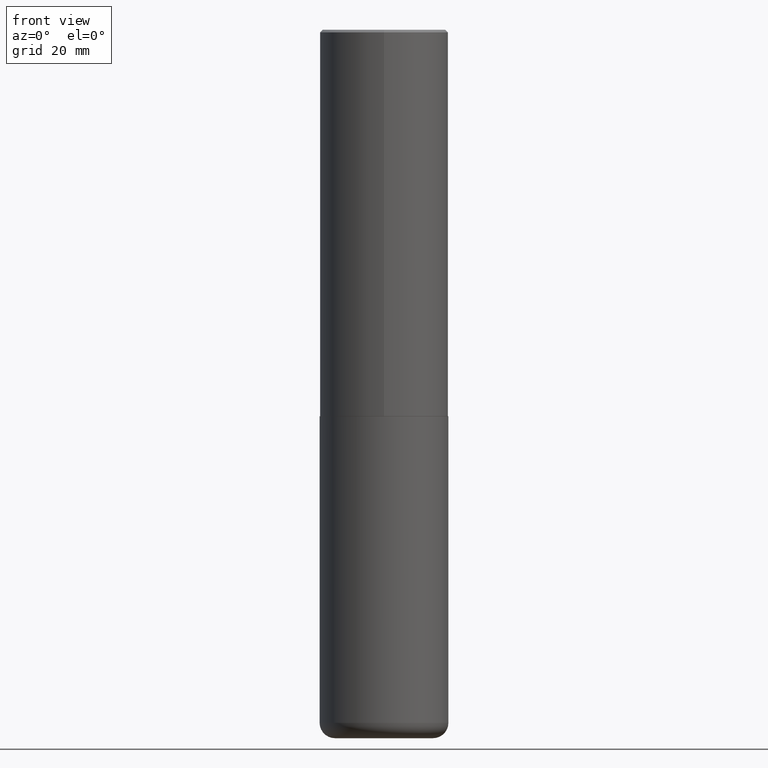
[diagram: clean part render]
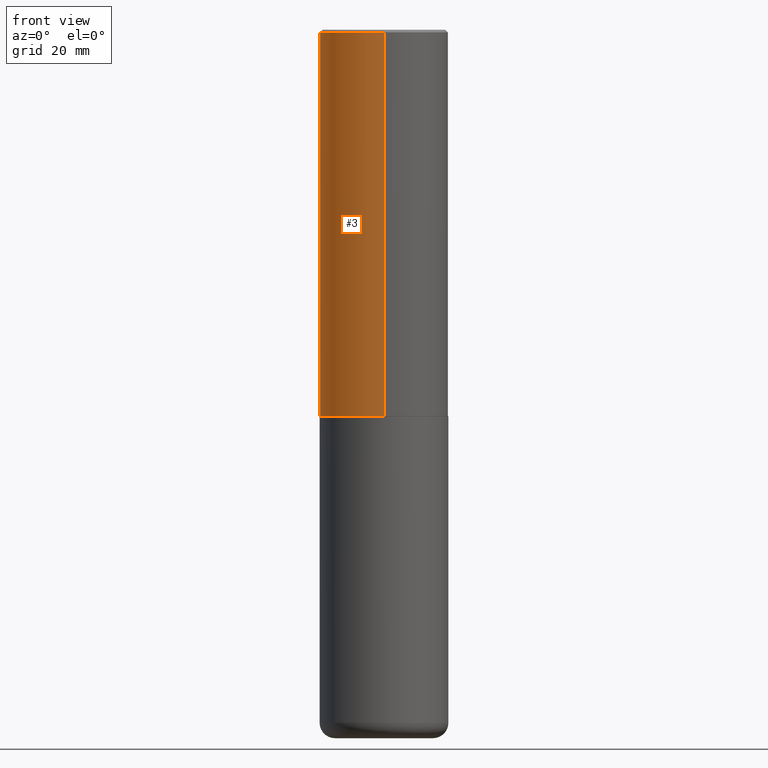
[diagram: same view with one face highlighted and labeled with its STEP entity id]
A machine part, front view. The second image highlights one B-rep face of the part: STEP entity #3.
In plain terms, the highlighted cylindrical surface (partial cylindrical patch) has radius 12.7 mm, axis along (-0, 0, 1).
Its self-contained STEP definition (entity closure, byte-faithful):
#3 = ADVANCED_FACE ( 'NONE', ( #391 ), #110, .T. ) ;
#9 = CIRCLE ( 'NONE', #233, 0.5000000000000000000 ) ;
#12 = EDGE_CURVE ( 'NONE', #390, #152, #371, .T. ) ;
#39 = DIRECTION ( 'NONE',  ( -2.446018302604025378E-29, 3.490694428695902798E-15, 1.000000000000000000 ) ) ;
#56 = VERTEX_POINT ( 'NONE', #103 ) ;
#60 = EDGE_CURVE ( 'NONE', #56, #152, #9, .T. ) ;
#68 = DIRECTION ( 'NONE',  ( -6.982962677686265922E-15, -1.000000000000000000, 3.491643216902136408E-15 ) ) ;
#75 = ORIENTED_EDGE ( 'NONE', *, *, #178, .F. ) ;
#85 = CARTESIAN_POINT ( 'NONE',  ( -3.491481338843061963E-15, -0.5000000000000107692, -2.998999999999998778 ) ) ;
#103 = CARTESIAN_POINT ( 'NONE',  ( 3.491481338843133355E-15, 0.4999999999999999445, -0.02000000000000185310 ) ) ;
#106 = CARTESIAN_POINT ( 'NONE',  ( 4.892036605208077240E-31, -6.981388857391842821E-17, -0.02000000000000010797 ) ) ;
#110 = CYLINDRICAL_SURFACE ( 'NONE', #349, 0.5000000000000001110 ) ;
#112 = DIRECTION ( 'NONE',  ( -6.982962677686265922E-15, -1.000000000000000000, 3.490694428695902798E-15 ) ) ;
#128 = DIRECTION ( 'NONE',  ( -2.446018302604025097E-29, 3.490694428695902798E-15, 1.000000000000000000 ) ) ;
#142 = CARTESIAN_POINT ( 'NONE',  ( 3.552713678800501718E-15, 0.5000000000000001110, -1.745347214347951794E-15 ) ) ;
#146 = CIRCLE ( 'NONE', #185, 0.5000000000000003331 ) ;
#152 = VERTEX_POINT ( 'NONE', #323 ) ;
#178 = EDGE_CURVE ( 'NONE', #301, #56, #399, .T. ) ;
#181 = CARTESIAN_POINT ( 'NONE',  ( 3.552713678800539584E-15, 0.4999999999999898970, -2.999000000000001886 ) ) ;
#185 = AXIS2_PLACEMENT_3D ( 'NONE', #408, #253, #187 ) ;
#187 = DIRECTION ( 'NONE',  ( -6.982962677686265922E-15, -1.000000000000000000, 3.278217592397113496E-15 ) ) ;
#192 = CARTESIAN_POINT ( 'NONE',  ( -3.491481338843133750E-15, -0.5000000000000001110, 1.745347214347951794E-15 ) ) ;
#217 = EDGE_LOOP ( 'NONE', ( #75, #225, #271, #314 ) ) ;
#225 = ORIENTED_EDGE ( 'NONE', *, *, #409, .T. ) ;
#233 = AXIS2_PLACEMENT_3D ( 'NONE', #106, #263, #68 ) ;
#253 = DIRECTION ( 'NONE',  ( -2.446018302604025378E-29, 3.490694428695902798E-15, 1.000000000000000000 ) ) ;
#263 = DIRECTION ( 'NONE',  ( -2.446018302604025378E-29, 3.490694428695902798E-15, 1.000000000000000000 ) ) ;
#271 = ORIENTED_EDGE ( 'NONE', *, *, #12, .T. ) ;
#289 = CARTESIAN_POINT ( 'NONE',  ( 0.000000000000000000, 0.000000000000000000, 0.000000000000000000 ) ) ;
#295 = DIRECTION ( 'NONE',  ( -2.446018302604025097E-29, 3.490694428695902798E-15, 1.000000000000000000 ) ) ;
#301 = VERTEX_POINT ( 'NONE', #181 ) ;
#314 = ORIENTED_EDGE ( 'NONE', *, *, #60, .F. ) ;
#323 = CARTESIAN_POINT ( 'NONE',  ( -3.430248998885764992E-15, -0.5000000000000001110, -0.01999999999999835937 ) ) ;
#349 = AXIS2_PLACEMENT_3D ( 'NONE', #289, #39, #112 ) ;
#371 = LINE ( 'NONE', #192, #403 ) ;
#384 = VECTOR ( 'NONE', #128, 39.37007874015748143 ) ;
#390 = VERTEX_POINT ( 'NONE', #85 ) ;
#391 = FACE_OUTER_BOUND ( 'NONE', #217, .T. ) ;
#399 = LINE ( 'NONE', #142, #384 ) ;
#403 = VECTOR ( 'NONE', #295, 39.37007874015748143 ) ;
#408 = CARTESIAN_POINT ( 'NONE',  ( 7.335608889509473609E-29, -1.046859259165901344E-14, -2.999000000000000554 ) ) ;
#409 = EDGE_CURVE ( 'NONE', #301, #390, #146, .T. ) ;